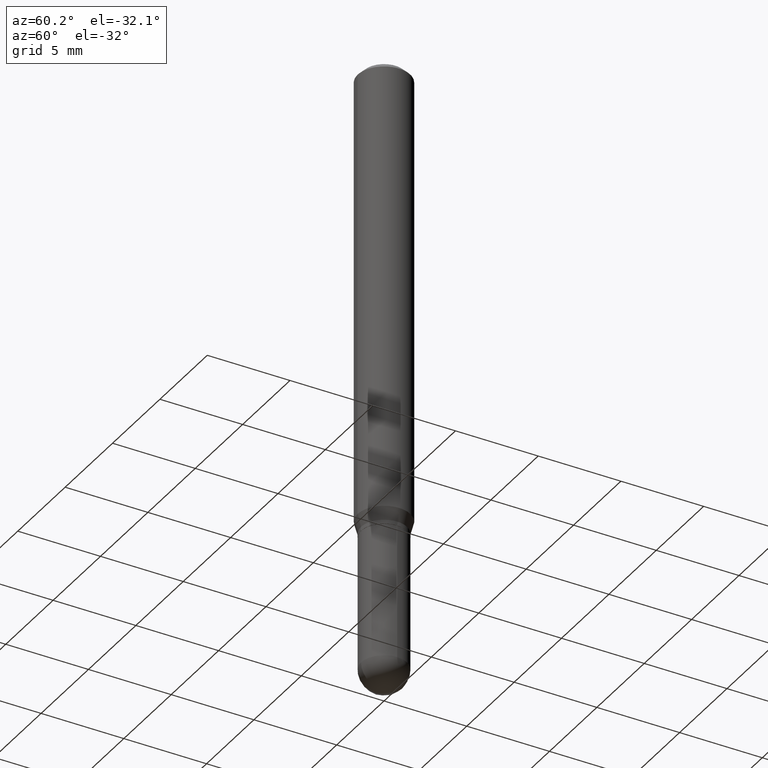
[diagram: clean part render]
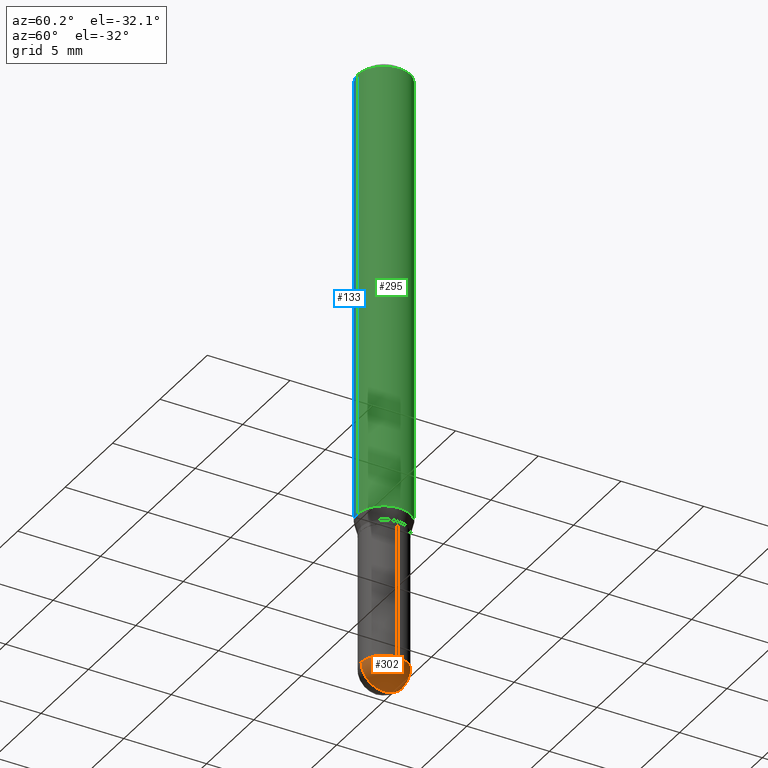
[diagram: same view with three faces highlighted in distinct colors, each labeled with its STEP entity id]
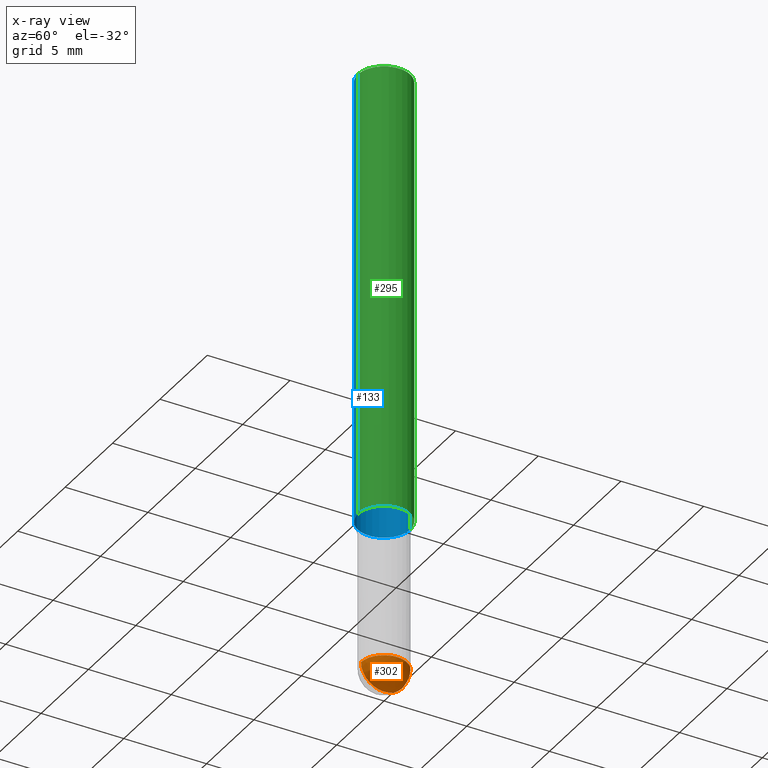
[diagram: x-ray of the same camera — body ghosted, the three highlighted faces saturated]
A machine part, auxiliary view with three faces highlighted in distinct colors.
The next image is the same camera in x-ray (body ghosted, the three faces saturated) — at least one of them is partly hidden behind the body in this view.
Their STEP definitions:

[orange] entity #302 — the highlighted spherical surface has radius 1.3894 mm.
#5 = CARTESIAN_POINT ( 'NONE',  ( 3.529758305977566399E-29, -5.052936797021334001E-15, -1.445300000000000029 ) ) ;
#7 = AXIS2_PLACEMENT_3D ( 'NONE', #219, #334, #107 ) ;
#10 = DIRECTION ( 'NONE',  ( -6.982962677686265922E-15, -1.000000000000000000, 4.994237648380719522E-15 ) ) ;
#13 = CARTESIAN_POINT ( 'NONE',  ( 3.661186569874987869E-29, -5.247270235251722876E-15, -1.500000000000000222 ) ) ;
#45 = AXIS2_PLACEMENT_3D ( 'NONE', #286, #93, #257 ) ;
#47 = DIRECTION ( 'NONE',  ( -6.982962677686266711E-15, -1.000000000000000000, 0.000000000000000000 ) ) ;
#76 = AXIS2_PLACEMENT_3D ( 'NONE', #399, #332, #10 ) ;
#93 = DIRECTION ( 'NONE',  ( -2.445468806185136597E-29, 3.491481338843145583E-15, 1.000000000000000000 ) ) ;
#98 = CARTESIAN_POINT ( 'NONE',  ( 3.886668764608108330E-16, 0.05469999999999505119, -1.445300000000000251 ) ) ;
#101 = CARTESIAN_POINT ( 'NONE',  ( 0.05470000000000000556, -4.869045301083706902E-15, -1.445300000000000029 ) ) ;
#107 = DIRECTION ( 'NONE',  ( 1.000000000000000000, -6.982962677686259611E-15, 0.000000000000000000 ) ) ;
#112 = ORIENTED_EDGE ( 'NONE', *, *, #248, .F. ) ;
#137 = DIRECTION ( 'NONE',  ( 7.105427357601001070E-15, 1.000000000000000000, 0.000000000000000000 ) ) ;
#169 = CIRCLE ( 'NONE', #7, 0.05470000000000000556 ) ;
#173 = DIRECTION ( 'NONE',  ( -1.000000000000000000, 6.982962677686265922E-15, -4.883557194083112340E-29 ) ) ;
#180 = CARTESIAN_POINT ( 'NONE',  ( -3.819680584694040760E-16, -0.05470000000000515422, -1.445299999999999807 ) ) ;
#216 = EDGE_CURVE ( 'NONE', #391, #337, #328, .T. ) ;
#219 = CARTESIAN_POINT ( 'NONE',  ( 3.534436065579377749E-29, -5.046237979029997798E-15, -1.445300000000000029 ) ) ;
#248 = EDGE_CURVE ( 'NONE', #278, #391, #169, .T. ) ;
#257 = DIRECTION ( 'NONE',  ( 1.000000000000000000, -6.982962677686259611E-15, 0.000000000000000000 ) ) ;
#275 = EDGE_LOOP ( 'NONE', ( #368, #499, #469, #112 ) ) ;
#278 = VERTEX_POINT ( 'NONE', #180 ) ;
#285 = VERTEX_POINT ( 'NONE', #13 ) ;
#286 = CARTESIAN_POINT ( 'NONE',  ( 3.534436065579377749E-29, -5.046237979029997798E-15, -1.445300000000000029 ) ) ;
#293 = AXIS2_PLACEMENT_3D ( 'NONE', #5, #173, #47 ) ;
#302 = ADVANCED_FACE ( 'NONE', ( #449 ), #481, .T. ) ;
#328 = CIRCLE ( 'NONE', #45, 0.05470000000000000556 ) ;
#332 = DIRECTION ( 'NONE',  ( 1.000000000000000000, -6.982962677686265922E-15, 4.883557194083113462E-29 ) ) ;
#334 = DIRECTION ( 'NONE',  ( -2.445468806185136597E-29, 3.491481338843145583E-15, 1.000000000000000000 ) ) ;
#337 = VERTEX_POINT ( 'NONE', #98 ) ;
#345 = EDGE_CURVE ( 'NONE', #285, #337, #472, .T. ) ;
#368 = ORIENTED_EDGE ( 'NONE', *, *, #475, .F. ) ;
#369 = DIRECTION ( 'NONE',  ( 1.000000000000000000, -7.105427357601001070E-15, 4.926315508542082329E-29 ) ) ;
#391 = VERTEX_POINT ( 'NONE', #101 ) ;
#399 = CARTESIAN_POINT ( 'NONE',  ( 3.529758305977566399E-29, -5.052936797021334001E-15, -1.445300000000000029 ) ) ;
#426 = AXIS2_PLACEMENT_3D ( 'NONE', #447, #369, #137 ) ;
#445 = CIRCLE ( 'NONE', #293, 0.05470000000000019291 ) ;
#447 = CARTESIAN_POINT ( 'NONE',  ( 3.529758305977566399E-29, -5.052936797021334001E-15, -1.445300000000000029 ) ) ;
#449 = FACE_OUTER_BOUND ( 'NONE', #275, .T. ) ;
#469 = ORIENTED_EDGE ( 'NONE', *, *, #216, .F. ) ;
#472 = CIRCLE ( 'NONE', #426, 0.05470000000000019291 ) ;
#475 = EDGE_CURVE ( 'NONE', #285, #278, #445, .T. ) ;
#481 = SPHERICAL_SURFACE ( 'NONE', #76, 0.05470000000000019291 ) ;
#499 = ORIENTED_EDGE ( 'NONE', *, *, #345, .T. ) ;

[blue] entity #133 — the highlighted cylindrical surface (edge-blend (fillet) strip) has radius 1.5875 mm, axis along (-0, 0, 1).
#18 = DIRECTION ( 'NONE',  ( -2.445474798914943281E-29, 3.491472756912977253E-15, 1.000000000000000000 ) ) ;
#23 = FACE_OUTER_BOUND ( 'NONE', #124, .T. ) ;
#48 = EDGE_CURVE ( 'NONE', #125, #465, #108, .T. ) ;
#52 = CARTESIAN_POINT ( 'NONE',  ( -4.364351673553651440E-16, -0.06250000000000380251, -1.085890003700963558 ) ) ;
#59 = AXIS2_PLACEMENT_3D ( 'NONE', #362, #296, #134 ) ;
#99 = EDGE_CURVE ( 'NONE', #422, #465, #282, .T. ) ;
#108 = CIRCLE ( 'NONE', #400, 0.06250000000000001388 ) ;
#124 = EDGE_LOOP ( 'NONE', ( #500, #431, #387, #395 ) ) ;
#125 = VERTEX_POINT ( 'NONE', #177 ) ;
#133 = ADVANCED_FACE ( 'NONE', ( #23 ), #233, .T. ) ;
#134 = DIRECTION ( 'NONE',  ( -6.982962677686265922E-15, -1.000000000000000000, 4.370956789862821150E-15 ) ) ;
#147 = AXIS2_PLACEMENT_3D ( 'NONE', #454, #413, #336 ) ;
#152 = DIRECTION ( 'NONE',  ( -2.445474798914943281E-29, 3.491472756912977253E-15, 1.000000000000000000 ) ) ;
#156 = CARTESIAN_POINT ( 'NONE',  ( 3.668212198372502678E-31, -5.237209135369591431E-17, -0.01500000000000035853 ) ) ;
#177 = CARTESIAN_POINT ( 'NONE',  ( 4.440892098500893388E-16, 0.06249999999999995837, -0.01500000000000057711 ) ) ;
#223 = LINE ( 'NONE', #491, #406 ) ;
#233 = CYLINDRICAL_SURFACE ( 'NONE', #147, 0.06250000000000001388 ) ;
#247 = EDGE_CURVE ( 'NONE', #503, #125, #223, .T. ) ;
#249 = VECTOR ( 'NONE', #429, 39.37007874015748143 ) ;
#282 = LINE ( 'NONE', #301, #249 ) ;
#296 = DIRECTION ( 'NONE',  ( -2.445474798914943281E-29, 3.491472756912977253E-15, 1.000000000000000000 ) ) ;
#301 = CARTESIAN_POINT ( 'NONE',  ( -4.364351673553916694E-16, -0.06250000000000001388, 2.182170473070611030E-16 ) ) ;
#336 = DIRECTION ( 'NONE',  ( -6.982962677686265133E-15, -1.000000000000000000, 3.491472756912976858E-15 ) ) ;
#362 = CARTESIAN_POINT ( 'NONE',  ( 2.655516638444361478E-29, -3.791355364926047630E-15, -1.085890003700963780 ) ) ;
#364 = CIRCLE ( 'NONE', #59, 0.06250000000000000000 ) ;
#387 = ORIENTED_EDGE ( 'NONE', *, *, #99, .T. ) ;
#395 = ORIENTED_EDGE ( 'NONE', *, *, #48, .F. ) ;
#400 = AXIS2_PLACEMENT_3D ( 'NONE', #156, #152, #460 ) ;
#402 = CARTESIAN_POINT ( 'NONE',  ( -4.364351673553913736E-16, -0.06250000000000006939, -0.01500000000000014169 ) ) ;
#406 = VECTOR ( 'NONE', #18, 39.37007874015748143 ) ;
#413 = DIRECTION ( 'NONE',  ( -2.445474798914943281E-29, 3.491472756912977253E-15, 1.000000000000000000 ) ) ;
#422 = VERTEX_POINT ( 'NONE', #52 ) ;
#429 = DIRECTION ( 'NONE',  ( -2.445474798914943281E-29, 3.491472756912977253E-15, 1.000000000000000000 ) ) ;
#431 = ORIENTED_EDGE ( 'NONE', *, *, #494, .T. ) ;
#440 = CARTESIAN_POINT ( 'NONE',  ( 4.440892098500890430E-16, 0.06249999999999619055, -1.085890003700964002 ) ) ;
#454 = CARTESIAN_POINT ( 'NONE',  ( 0.000000000000000000, 0.000000000000000000, 0.000000000000000000 ) ) ;
#460 = DIRECTION ( 'NONE',  ( -6.982962677686265922E-15, -1.000000000000000000, 3.483106191921934765E-15 ) ) ;
#465 = VERTEX_POINT ( 'NONE', #402 ) ;
#491 = CARTESIAN_POINT ( 'NONE',  ( 4.440892098500626162E-16, 0.06250000000000001388, -2.182170473070611030E-16 ) ) ;
#494 = EDGE_CURVE ( 'NONE', #503, #422, #364, .T. ) ;
#500 = ORIENTED_EDGE ( 'NONE', *, *, #247, .F. ) ;
#503 = VERTEX_POINT ( 'NONE', #440 ) ;

[green] entity #295 — the highlighted cylindrical surface (edge-blend (fillet) strip) has radius 1.5875 mm, axis along (-0, 0, 1).
#18 = DIRECTION ( 'NONE',  ( -2.445474798914943281E-29, 3.491472756912977253E-15, 1.000000000000000000 ) ) ;
#28 = AXIS2_PLACEMENT_3D ( 'NONE', #311, #84, #432 ) ;
#52 = CARTESIAN_POINT ( 'NONE',  ( -4.364351673553651440E-16, -0.06250000000000380251, -1.085890003700963558 ) ) ;
#69 = EDGE_LOOP ( 'NONE', ( #113, #80, #310, #350 ) ) ;
#80 = ORIENTED_EDGE ( 'NONE', *, *, #247, .T. ) ;
#84 = DIRECTION ( 'NONE',  ( -2.445474798914943281E-29, 3.491472756912977253E-15, 1.000000000000000000 ) ) ;
#99 = EDGE_CURVE ( 'NONE', #422, #465, #282, .T. ) ;
#100 = CYLINDRICAL_SURFACE ( 'NONE', #187, 0.06250000000000001388 ) ;
#113 = ORIENTED_EDGE ( 'NONE', *, *, #171, .T. ) ;
#125 = VERTEX_POINT ( 'NONE', #177 ) ;
#130 = CARTESIAN_POINT ( 'NONE',  ( 3.668212198372502678E-31, -5.237209135369591431E-17, -0.01500000000000035853 ) ) ;
#168 = DIRECTION ( 'NONE',  ( -6.982962677686265922E-15, -1.000000000000000000, 3.483106191921934765E-15 ) ) ;
#171 = EDGE_CURVE ( 'NONE', #422, #503, #434, .T. ) ;
#176 = FACE_OUTER_BOUND ( 'NONE', #69, .T. ) ;
#177 = CARTESIAN_POINT ( 'NONE',  ( 4.440892098500893388E-16, 0.06249999999999995837, -0.01500000000000057711 ) ) ;
#187 = AXIS2_PLACEMENT_3D ( 'NONE', #262, #411, #260 ) ;
#223 = LINE ( 'NONE', #491, #406 ) ;
#246 = CIRCLE ( 'NONE', #306, 0.06250000000000001388 ) ;
#247 = EDGE_CURVE ( 'NONE', #503, #125, #223, .T. ) ;
#249 = VECTOR ( 'NONE', #429, 39.37007874015748143 ) ;
#260 = DIRECTION ( 'NONE',  ( -6.982962677686265133E-15, -1.000000000000000000, 3.491472756912976858E-15 ) ) ;
#262 = CARTESIAN_POINT ( 'NONE',  ( 0.000000000000000000, 0.000000000000000000, 0.000000000000000000 ) ) ;
#282 = LINE ( 'NONE', #301, #249 ) ;
#295 = ADVANCED_FACE ( 'NONE', ( #176 ), #100, .T. ) ;
#301 = CARTESIAN_POINT ( 'NONE',  ( -4.364351673553916694E-16, -0.06250000000000001388, 2.182170473070611030E-16 ) ) ;
#306 = AXIS2_PLACEMENT_3D ( 'NONE', #130, #483, #168 ) ;
#310 = ORIENTED_EDGE ( 'NONE', *, *, #408, .F. ) ;
#311 = CARTESIAN_POINT ( 'NONE',  ( 2.655516638444361478E-29, -3.791355364926047630E-15, -1.085890003700963780 ) ) ;
#350 = ORIENTED_EDGE ( 'NONE', *, *, #99, .F. ) ;
#402 = CARTESIAN_POINT ( 'NONE',  ( -4.364351673553913736E-16, -0.06250000000000006939, -0.01500000000000014169 ) ) ;
#406 = VECTOR ( 'NONE', #18, 39.37007874015748143 ) ;
#408 = EDGE_CURVE ( 'NONE', #465, #125, #246, .T. ) ;
#411 = DIRECTION ( 'NONE',  ( -2.445474798914943281E-29, 3.491472756912977253E-15, 1.000000000000000000 ) ) ;
#422 = VERTEX_POINT ( 'NONE', #52 ) ;
#429 = DIRECTION ( 'NONE',  ( -2.445474798914943281E-29, 3.491472756912977253E-15, 1.000000000000000000 ) ) ;
#432 = DIRECTION ( 'NONE',  ( -6.982962677686265922E-15, -1.000000000000000000, 4.370956789862821150E-15 ) ) ;
#434 = CIRCLE ( 'NONE', #28, 0.06250000000000000000 ) ;
#440 = CARTESIAN_POINT ( 'NONE',  ( 4.440892098500890430E-16, 0.06249999999999619055, -1.085890003700964002 ) ) ;
#465 = VERTEX_POINT ( 'NONE', #402 ) ;
#483 = DIRECTION ( 'NONE',  ( -2.445474798914943281E-29, 3.491472756912977253E-15, 1.000000000000000000 ) ) ;
#491 = CARTESIAN_POINT ( 'NONE',  ( 4.440892098500626162E-16, 0.06250000000000001388, -2.182170473070611030E-16 ) ) ;
#503 = VERTEX_POINT ( 'NONE', #440 ) ;